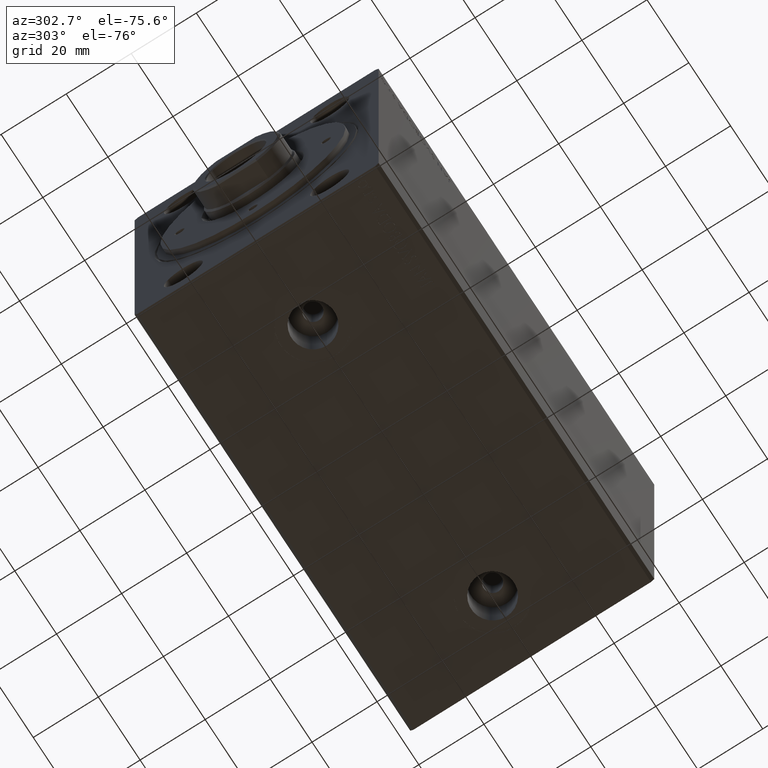
[diagram: clean part render]
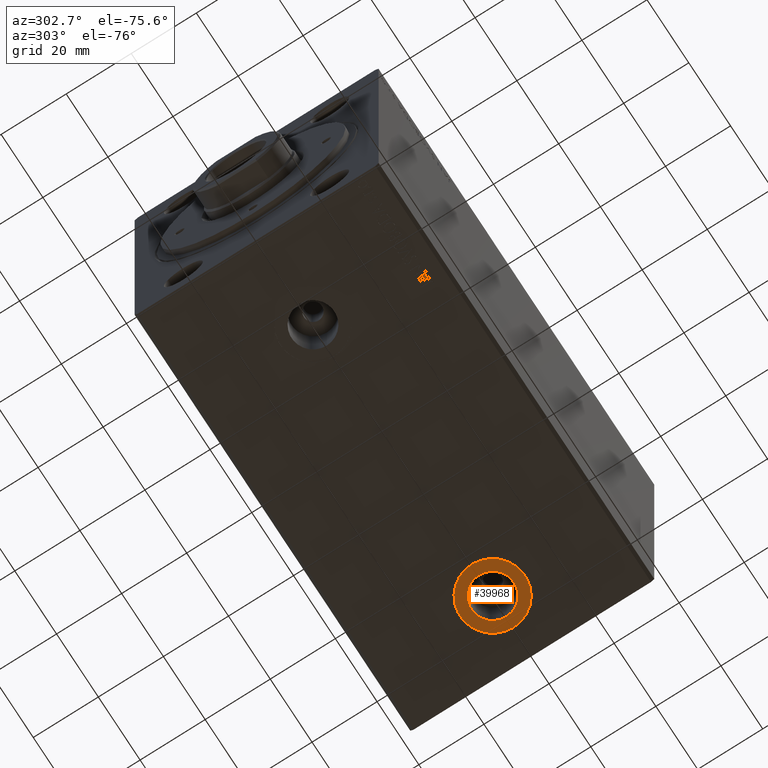
[diagram: same view with one face highlighted and labeled with its STEP entity id]
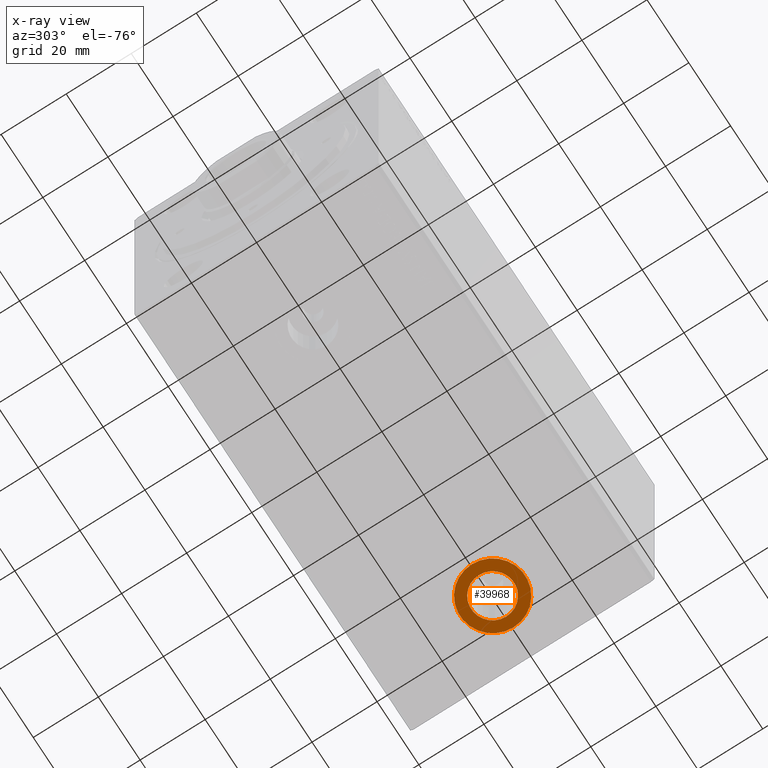
[diagram: x-ray of the same camera — body ghosted, the highlighted face saturated]
A machine part, auxiliary view. The second image highlights one B-rep face of the part: STEP entity #39968.
The next image is the same camera in x-ray: the body ghosted, the highlighted face saturated — about 0% of this face is hidden behind the body in this view.
In plain terms, the highlighted planar face has unit normal (0, 0, -1).
Its self-contained STEP definition (entity closure, byte-faithful):
#1513 = DIRECTION ( 'NONE',  ( 0.000000000000000000, 0.000000000000000000, -1.000000000000000000 ) ) ;
#1524 = AXIS2_PLACEMENT_3D ( 'NONE', #41423, #33876, #34752 ) ;
#3842 = DIRECTION ( 'NONE',  ( -1.000000000000000000, 0.000000000000000000, -0.000000000000000000 ) ) ;
#3923 = EDGE_CURVE ( 'NONE', #30889, #20468, #6311, .T. ) ;
#4364 = CIRCLE ( 'NONE', #1524, 6.580000000000002736 ) ;
#4681 = ORIENTED_EDGE ( 'NONE', *, *, #8475, .T. ) ;
#5603 = CARTESIAN_POINT ( 'NONE',  ( 113.0000000000000000, -1.338083489554506112E-14, -49.89999999999999858 ) ) ;
#6055 = DIRECTION ( 'NONE',  ( -1.000000000000000000, 0.000000000000000000, 0.000000000000000000 ) ) ;
#6311 = CIRCLE ( 'NONE', #37581, 6.580000000000002736 ) ;
#7376 = VERTEX_POINT ( 'NONE', #10666 ) ;
#8475 = EDGE_CURVE ( 'NONE', #7376, #9361, #9262, .T. ) ;
#8987 = CARTESIAN_POINT ( 'NONE',  ( 106.4200000000000017, -1.338083489554506112E-14, -49.89999999999999858 ) ) ;
#9262 = CIRCLE ( 'NONE', #12818, 9.999999999999994671 ) ;
#9361 = VERTEX_POINT ( 'NONE', #14605 ) ;
#10666 = CARTESIAN_POINT ( 'NONE',  ( 123.0000000000000000, -1.215618809639770806E-14, -49.89999999999999858 ) ) ;
#12818 = AXIS2_PLACEMENT_3D ( 'NONE', #5603, #43193, #6055 ) ;
#14605 = CARTESIAN_POINT ( 'NONE',  ( 103.0000000000000142, -1.338083489554506112E-14, -49.89999999999999858 ) ) ;
#16745 = CARTESIAN_POINT ( 'NONE',  ( 113.0000000000000000, -1.338083489554506112E-14, -49.89999999999999858 ) ) ;
#16762 = AXIS2_PLACEMENT_3D ( 'NONE', #16745, #34315, #3842 ) ;
#17567 = EDGE_CURVE ( 'NONE', #9361, #7376, #20556, .T. ) ;
#17952 = EDGE_LOOP ( 'NONE', ( #25556, #22606 ) ) ;
#20468 = VERTEX_POINT ( 'NONE', #8987 ) ;
#20556 = CIRCLE ( 'NONE', #30505, 9.999999999999994671 ) ;
#21722 = DIRECTION ( 'NONE',  ( 0.000000000000000000, 0.000000000000000000, -1.000000000000000000 ) ) ;
#22606 = ORIENTED_EDGE ( 'NONE', *, *, #3923, .F. ) ;
#22980 = EDGE_LOOP ( 'NONE', ( #40187, #4681 ) ) ;
#23294 = EDGE_CURVE ( 'NONE', #20468, #30889, #4364, .T. ) ;
#25556 = ORIENTED_EDGE ( 'NONE', *, *, #23294, .F. ) ;
#28219 = CARTESIAN_POINT ( 'NONE',  ( 113.0000000000000000, -1.338083489554506112E-14, -49.89999999999999858 ) ) ;
#30315 = FACE_BOUND ( 'NONE', #17952, .T. ) ;
#30505 = AXIS2_PLACEMENT_3D ( 'NONE', #28219, #1513, #35319 ) ;
#30889 = VERTEX_POINT ( 'NONE', #32810 ) ;
#32810 = CARTESIAN_POINT ( 'NONE',  ( 119.5800000000000125, -1.257501730170610208E-14, -49.89999999999999858 ) ) ;
#33648 = PLANE ( 'NONE',  #16762 ) ;
#33876 = DIRECTION ( 'NONE',  ( 0.000000000000000000, 0.000000000000000000, -1.000000000000000000 ) ) ;
#34315 = DIRECTION ( 'NONE',  ( 0.000000000000000000, 0.000000000000000000, -1.000000000000000000 ) ) ;
#34752 = DIRECTION ( 'NONE',  ( -1.000000000000000000, 0.000000000000000000, 0.000000000000000000 ) ) ;
#35295 = DIRECTION ( 'NONE',  ( -1.000000000000000000, 0.000000000000000000, 0.000000000000000000 ) ) ;
#35319 = DIRECTION ( 'NONE',  ( -1.000000000000000000, 0.000000000000000000, 0.000000000000000000 ) ) ;
#37581 = AXIS2_PLACEMENT_3D ( 'NONE', #41979, #21722, #35295 ) ;
#39968 = ADVANCED_FACE ( 'NONE', ( #30315, #43883 ), #33648, .T. ) ;
#40187 = ORIENTED_EDGE ( 'NONE', *, *, #17567, .T. ) ;
#41423 = CARTESIAN_POINT ( 'NONE',  ( 113.0000000000000000, -1.338083489554506112E-14, -49.89999999999999858 ) ) ;
#41979 = CARTESIAN_POINT ( 'NONE',  ( 113.0000000000000000, -1.338083489554506112E-14, -49.89999999999999858 ) ) ;
#43193 = DIRECTION ( 'NONE',  ( 0.000000000000000000, 0.000000000000000000, -1.000000000000000000 ) ) ;
#43883 = FACE_OUTER_BOUND ( 'NONE', #22980, .T. ) ;